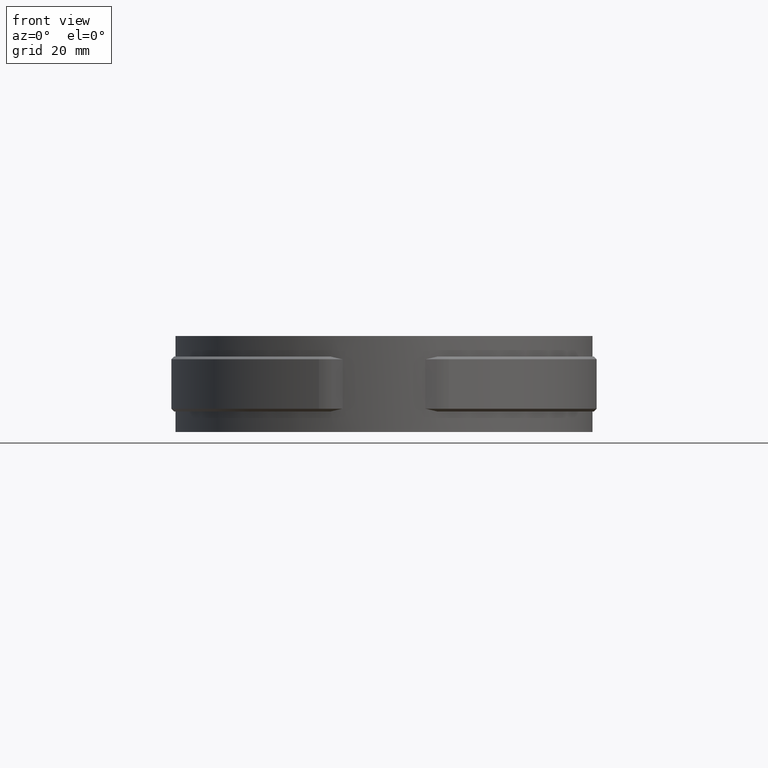
[diagram: clean part render]
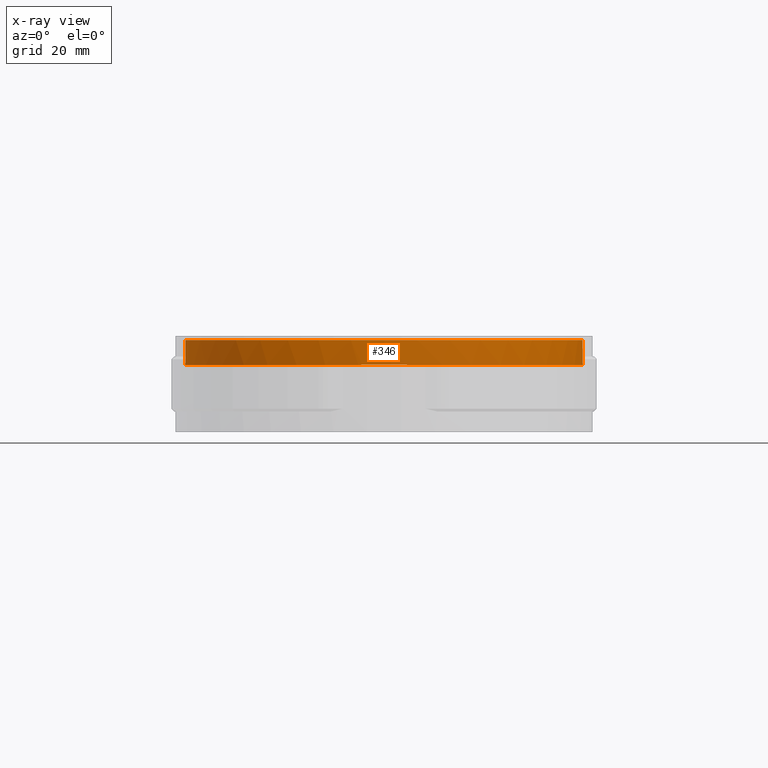
[diagram: x-ray — body ghosted, one internal face saturated and labeled with its STEP entity id]
A machine part, front view, then the same camera in x-ray: the body is ghosted and one INTERNAL B-rep face — a face not visible from any outside direction — is saturated and labeled: STEP entity #346.
In plain terms, the highlighted cylindrical surface (partial cylindrical patch) has radius 72.5 mm, axis along (0, 0, 1).
Its self-contained STEP definition (entity closure, byte-faithful):
#346 = ADVANCED_FACE( '', ( #546 ), #547, .T. );
#546 = FACE_OUTER_BOUND( '', #1259, .T. );
#547 = CYLINDRICAL_SURFACE( '', #1260, 72.5000000000000 );
#1259 = EDGE_LOOP( '', ( #2900, #2901, #2902, #2903, #2904, #2905, #2906, #2907 ) );
#1260 = AXIS2_PLACEMENT_3D( '', #2908, #2909, #2910 );
#2900 = ORIENTED_EDGE( '', *, *, #4699, .T. );
#2901 = ORIENTED_EDGE( '', *, *, #4700, .T. );
#2902 = ORIENTED_EDGE( '', *, *, #4701, .F. );
#2903 = ORIENTED_EDGE( '', *, *, #4702, .F. );
#2904 = ORIENTED_EDGE( '', *, *, #4703, .F. );
#2905 = ORIENTED_EDGE( '', *, *, #4704, .F. );
#2906 = ORIENTED_EDGE( '', *, *, #4705, .T. );
#2907 = ORIENTED_EDGE( '', *, *, #4706, .T. );
#2908 = CARTESIAN_POINT( '', ( -1.73472347597681E-015, 5.55111512312578E-014, 4.33680868994202E-016 ) );
#2909 = DIRECTION( '', ( 0.000000000000000, 0.000000000000000, 1.00000000000000 ) );
#2910 = DIRECTION( '', ( 1.00000000000000, -6.02334540269725E-017, 0.000000000000000 ) );
#4699 = EDGE_CURVE( '', #5151, #5152, #5153, .T. );
#4700 = EDGE_CURVE( '', #5152, #5154, #5155, .T. );
#4701 = EDGE_CURVE( '', #5156, #5154, #5157, .T. );
#4702 = EDGE_CURVE( '', #5158, #5156, #5159, .T. );
#4703 = EDGE_CURVE( '', #5160, #5158, #5161, .F. );
#4704 = EDGE_CURVE( '', #5162, #5160, #5163, .T. );
#4705 = EDGE_CURVE( '', #5162, #5164, #5165, .T. );
#4706 = EDGE_CURVE( '', #5164, #5151, #5166, .T. );
#5151 = VERTEX_POINT( '', #6729 );
#5152 = VERTEX_POINT( '', #6730 );
#5153 = B_SPLINE_CURVE_WITH_KNOTS( '', 3, ( #6731, #6732, #6733, #6734 ), .UNSPECIFIED., .F., .F., ( 4, 4 ), ( 0.000000000000000, 0.00132149924477472 ), .UNSPECIFIED. );
#5154 = VERTEX_POINT( '', #6735 );
#5155 = B_SPLINE_CURVE_WITH_KNOTS( '', 3, ( #6736, #6737, #6738, #6739, #6740, #6741, #6742, #6743, #6744, #6745, #6746, #6747, #6748, #6749, #6750, #6751, #6752, #6753, #6754, #6755, #6756, #6757, #6758, #6759, #6760, #6761, #6762, #6763, #6764, #6765, #6766, #6767, #6768, #6769, #6770, #6771, #6772, #6773, #6774, #6775, #6776, #6777, #6778, #6779, #6780, #6781, #6782, #6783, #6784, #6785, #6786, #6787, #6788, #6789, #6790, #6791, #6792, #6793, #6794, #6795, #6796, #6797, #6798, #6799, #6800, #6801 ), .UNSPECIFIED., .F., .F., ( 4, 2, 2, 2, 2, 2, 2, 2, 2, 2, 2, 2, 2, 2, 2, 2, 2, 2, 2, 2, 2, 2, 2, 2, 2, 2, 2, 2, 2, 2, 2, 2, 4 ), ( 0.00180017268493859, 0.0148668141487397, 0.0214001348806402, 0.0246667952465905, 0.0279334556125408, 0.0410000970763419, 0.0475334178082425, 0.0508000781741928, 0.0540667385401431, 0.0671333800039443, 0.0704000403698946, 0.0736667007358449, 0.0802000214677454, 0.0932666629315466, 0.0965333232974969, 0.0997999836634472, 0.106333304395348, 0.119399945859149, 0.122666606225099, 0.125933266591050, 0.132466587322950, 0.145533228786751, 0.148799889152702, 0.152066549518652, 0.158599870250553, 0.165133190982453, 0.168399851348403, 0.171666511714354, 0.184733153178155, 0.191266473910055, 0.194533134276006, 0.197799794641956, 0.210866436105757 ), .UNSPECIFIED. );
#5156 = VERTEX_POINT( '', #6802 );
#5157 = LINE( '', #6803, #6804 );
#5158 = VERTEX_POINT( '', #6805 );
#5159 = CIRCLE( '', #6806, 72.5000000000000 );
#5160 = VERTEX_POINT( '', #6807 );
#5161 = LINE( '', #6808, #6809 );
#5162 = VERTEX_POINT( '', #6810 );
#5163 = B_SPLINE_CURVE_WITH_KNOTS( '', 3, ( #6811, #6812, #6813, #6814, #6815, #6816, #6817, #6818, #6819, #6820, #6821, #6822, #6823, #6824, #6825, #6826, #6827, #6828, #6829, #6830, #6831, #6832, #6833, #6834, #6835, #6836, #6837, #6838, #6839, #6840, #6841, #6842, #6843, #6844, #6845, #6846, #6847, #6848, #6849, #6850, #6851, #6852, #6853, #6854, #6855, #6856, #6857, #6858, #6859, #6860, #6861, #6862, #6863, #6864, #6865, #6866, #6867, #6868, #6869, #6870, #6871, #6872, #6873, #6874, #6875 ), .UNSPECIFIED., .F., .F., ( 4, 2, 2, 2, 2, 2, 2, 2, 2, 2, 2, 2, 2, 2, 2, 2, 2, 2, 2, 2, 2, 2, 2, 2, 1, 2, 2, 2, 2, 2, 2, 2, 4 ), ( 0.00181071080096817, 0.0148766924815717, 0.0214096833218735, 0.0246761787420243, 0.0279426741621752, 0.0410086558427788, 0.0475416466830806, 0.0508081421032314, 0.0540746375233823, 0.0671406192039859, 0.0704071146241368, 0.0736736100442877, 0.0802066008845895, 0.0932725825651931, 0.0965390779853440, 0.0998055734054950, 0.106338564245797, 0.119404545926400, 0.122671041346551, 0.125937536766702, 0.132470527607004, 0.145536509287608, 0.148803004707759, 0.152069500127909, 0.158602490968211, 0.165135481808513, 0.168401977228664, 0.171668472648815, 0.184734454329419, 0.191267445169720, 0.194533940589871, 0.197800436010022, 0.210866417690626 ), .UNSPECIFIED. );
#5164 = VERTEX_POINT( '', #6876 );
#5165 = B_SPLINE_CURVE_WITH_KNOTS( '', 3, ( #6877, #6878, #6879, #6880 ), .UNSPECIFIED., .F., .F., ( 4, 4 ), ( 0.00967477096991919, 0.0110007996335536 ), .UNSPECIFIED. );
#5166 = CIRCLE( '', #6881, 72.5000000000000 );
#6729 = CARTESIAN_POINT( '', ( 7.99999999999999, -72.0572688907926, -9.00000000000001 ) );
#6730 = CARTESIAN_POINT( '', ( 9.31004542424372, -71.8997430746349, -9.12367969139905 ) );
#6731 = CARTESIAN_POINT( '', ( 7.99999999999999, -72.0572688907926, -9.00000000000001 ) );
#6732 = CARTESIAN_POINT( '', ( 8.44416107718837, -72.0079568828272, -9.00000000000001 ) );
#6733 = CARTESIAN_POINT( '', ( 8.88071544743659, -71.9553355067513, -9.04188568728999 ) );
#6734 = CARTESIAN_POINT( '', ( 9.31004542424301, -71.8997430746350, -9.12367969140327 ) );
#6735 = CARTESIAN_POINT( '', ( 8.27755905511811, 72.0259121156340, -9.12040148291710 ) );
#6736 = CARTESIAN_POINT( '', ( 9.31004542424372, -71.8997430746348, -9.12367969139904 ) );
#6737 = CARTESIAN_POINT( '', ( 13.6744206163745, -71.3346154462231, -9.12682295488739 ) );
#6738 = CARTESIAN_POINT( '', ( 17.9308008568787, -70.3827636710467, -9.12805406585490 ) );
#6739 = CARTESIAN_POINT( '', ( 24.1579999809571, -68.3914490068453, -9.12457392541070 ) );
#6740 = CARTESIAN_POINT( '', ( 26.2073419680224, -67.6331725781024, -9.12273916318543 ) );
#6741 = CARTESIAN_POINT( '', ( 29.2408706005325, -66.3507851349550, -9.12060139849485 ) );
#6742 = CARTESIAN_POINT( '', ( 30.2465955288964, -65.8984951934112, -9.12000450136236 ) );
#6743 = CARTESIAN_POINT( '', ( 32.2385646258088, -64.9472336648163, -9.11948630179163 ) );
#6744 = CARTESIAN_POINT( '', ( 33.2199284984005, -64.4506700736902, -9.11964201516923 ) );
#6745 = CARTESIAN_POINT( '', ( 38.0550521390468, -61.8652031830393, -9.12190024040564 ) );
#6746 = CARTESIAN_POINT( '', ( 41.6954672266354, -59.4708473060196, -9.12675529060290 ) );
#6747 = CARTESIAN_POINT( '', ( 46.8197896400215, -55.3978177792227, -9.12726095956356 ) );
#6748 = CARTESIAN_POINT( '', ( 48.4715087282380, -53.9594076303989, -9.12650869006169 ) );
#6749 = CARTESIAN_POINT( '', ( 50.8619895376684, -51.6770909380927, -9.12450135295612 ) );
#6750 = CARTESIAN_POINT( '', ( 51.6443913782792, -50.8951449878403, -9.12369915546608 ) );
#6751 = CARTESIAN_POINT( '', ( 53.1640157484250, -49.3056424120748, -9.12210279381312 ) );
#6752 = CARTESIAN_POINT( '', ( 53.9033382313220, -48.4961472652865, -9.12130733061777 ) );
#6753 = CARTESIAN_POINT( '', ( 57.4991213062165, -44.3761174723464, -9.11823216808537 ) );
#6754 = CARTESIAN_POINT( '', ( 60.0555379535735, -40.8496798316679, -9.12223403633779 ) );
#6755 = CARTESIAN_POINT( '', ( 62.8515739752714, -36.1541736547616, -9.12567308568724 ) );
#6756 = CARTESIAN_POINT( '', ( 63.3906543644535, -35.2005896682100, -9.12624417738881 ) );
#6757 = CARTESIAN_POINT( '', ( 64.4279560127836, -33.2640204689409, -9.12699312795867 ) );
#6758 = CARTESIAN_POINT( '', ( 64.9271881370940, -32.2788895171707, -9.12717055511854 ) );
#6759 = CARTESIAN_POINT( '', ( 66.3549464698140, -29.2939746431475, -9.12703296844565 ) );
#6760 = CARTESIAN_POINT( '', ( 67.2091805030035, -27.2752898027412, -9.12600077376335 ) );
#6761 = CARTESIAN_POINT( '', ( 69.4880929019193, -21.1356678552994, -9.12162444449441 ) );
#6762 = CARTESIAN_POINT( '', ( 70.6312375385011, -16.9318274553385, -9.11836650468904 ) );
#6763 = CARTESIAN_POINT( '', ( 71.5845569547781, -11.5369725952254, -9.12177863750550 ) );
#6764 = CARTESIAN_POINT( '', ( 71.7512585615964, -10.4509454292032, -9.12260064561349 ) );
#6765 = CARTESIAN_POINT( '', ( 72.0358461790396, -8.26451636860840, -9.12418705491811 ) );
#6766 = CARTESIAN_POINT( '', ( 72.1533956670857, -7.16554143371677, -9.12494916821181 ) );
#6767 = CARTESIAN_POINT( '', ( 72.4294232727951, -3.88054193220909, -9.12677477611673 ) );
#6768 = CARTESIAN_POINT( '', ( 72.5129417509653, -1.69567144241024, -9.12733165116732 ) );
#6769 = CARTESIAN_POINT( '', ( 72.4692658924710, 4.84392331528040, -9.12629551130253 ) );
#6770 = CARTESIAN_POINT( '', ( 72.0502366409994, 9.18375302215934, -9.12115088083175 ) );
#6771 = CARTESIAN_POINT( '', ( 71.0267065653657, 14.5830363591466, -9.11951225477560 ) );
#6772 = CARTESIAN_POINT( '', ( 70.7961375006593, 15.6643446105028, -9.11956346855534 ) );
#6773 = CARTESIAN_POINT( '', ( 70.2872623588965, 17.8091416744465, -9.12035718591093 ) );
#6774 = CARTESIAN_POINT( '', ( 70.0092925958962, 18.8719122850222, -9.12103893744088 ) );
#6775 = CARTESIAN_POINT( '', ( 69.1060603052904, 22.0318615048092, -9.12331410349489 ) );
#6776 = CARTESIAN_POINT( '', ( 68.4116152196974, 24.1007349701337, -9.12508359468743 ) );
#6777 = CARTESIAN_POINT( '', ( 66.0562372122072, 30.1960530142408, -9.12817127724507 ) );
#6778 = CARTESIAN_POINT( '', ( 64.1255468415748, 34.1121303612262, -9.12640357055617 ) );
#6779 = CARTESIAN_POINT( '', ( 61.2438886647710, 38.8156305621417, -9.12238591164717 ) );
#6780 = CARTESIAN_POINT( '', ( 60.6458117678362, 39.7434472716067, -9.12156485564366 ) );
#6781 = CARTESIAN_POINT( '', ( 59.4142071584335, 41.5620990055309, -9.12024823884880 ) );
#6782 = CARTESIAN_POINT( '', ( 58.7795894335728, 42.4547309052634, -9.11975132361662 ) );
#6783 = CARTESIAN_POINT( '', ( 56.8201147399630, 45.0832762985150, -9.11940252317470 ) );
#6784 = CARTESIAN_POINT( '', ( 55.4397480309439, 46.7699386153975, -9.12088963834242 ) );
#6785 = CARTESIAN_POINT( '', ( 52.5325115352067, 50.0132787530069, -9.12405950652633 ) );
#6786 = CARTESIAN_POINT( '', ( 51.0056425734929, 51.5699573103107, -9.12572261499226 ) );
#6787 = CARTESIAN_POINT( '', ( 48.6039564554838, 53.8061514578396, -9.12701047783404 ) );
#6788 = CARTESIAN_POINT( '', ( 47.7848025507515, 54.5350539700034, -9.12725107657160 ) );
#6789 = CARTESIAN_POINT( '', ( 46.1087057674846, 55.9593309357164, -9.12728820242303 ) );
#6790 = CARTESIAN_POINT( '', ( 45.2495177679768, 56.6563701531570, -9.12708302989062 ) );
#6791 = CARTESIAN_POINT( '', ( 40.8946674954861, 60.0273801284827, -9.12507365908864 ) );
#6792 = CARTESIAN_POINT( '', ( 37.2149361428585, 62.3721585179467, -9.11941342648302 ) );
#6793 = CARTESIAN_POINT( '', ( 31.4111028541743, 65.3784331799158, -9.11970396311075 ) );
#6794 = CARTESIAN_POINT( '', ( 29.4288227541054, 66.2948433309936, -9.12119433014745 ) );
#6795 = CARTESIAN_POINT( '', ( 26.3824266574771, 67.5382893543080, -9.12323664443853 ) );
#6796 = CARTESIAN_POINT( '', ( 25.3547800230153, 67.9308763784580, -9.12389700908568 ) );
#6797 = CARTESIAN_POINT( '', ( 23.2746405283123, 68.6713910142986, -9.12494391963428 ) );
#6798 = CARTESIAN_POINT( '', ( 22.2271883971395, 69.0174811364905, -9.12532710505633 ) );
#6799 = CARTESIAN_POINT( '', ( 16.9656827822349, 70.6242544117571, -9.12625504975852 ) );
#6800 = CARTESIAN_POINT( '', ( 12.6669242595378, 71.5214654709913, -9.12271196683189 ) );
#6801 = CARTESIAN_POINT( '', ( 8.27755905511815, 72.0259121156340, -9.12040148291713 ) );
#6802 = CARTESIAN_POINT( '', ( 8.27755905511811, 72.0259121156340, 4.33680868994202E-016 ) );
#6803 = CARTESIAN_POINT( '', ( 8.27755905511811, 72.0259121156340, 4.33680868994202E-016 ) );
#6804 = VECTOR( '', #8531, 1000.00000000000 );
#6805 = CARTESIAN_POINT( '', ( -8.27755905511811, 72.0259121156340, 4.33680868994202E-016 ) );
#6806 = AXIS2_PLACEMENT_3D( '', #8532, #8533, #8534 );
#6807 = CARTESIAN_POINT( '', ( -8.27755905511810, 72.0259121156340, -9.12062219946800 ) );
#6808 = CARTESIAN_POINT( '', ( -8.27755905511811, 72.0259121156340, 4.33680868994202E-016 ) );
#6809 = VECTOR( '', #8535, 1000.00000000000 );
#6810 = CARTESIAN_POINT( '', ( -9.32060480747493, -71.8983749887497, -9.12569982162008 ) );
#6811 = CARTESIAN_POINT( '', ( -9.32060480747493, -71.8983749887497, -9.12569982162009 ) );
#6812 = CARTESIAN_POINT( '', ( -13.6845842266141, -71.3326469377316, -9.12806441193151 ) );
#6813 = CARTESIAN_POINT( '', ( -17.9405857752718, -70.3802578518801, -9.12682824965106 ) );
#6814 = CARTESIAN_POINT( '', ( -24.1672301116159, -68.3881847766589, -9.12216962571739 ) );
#6815 = CARTESIAN_POINT( '', ( -26.2163894519340, -67.6296636679901, -9.12035947391644 ) );
#6816 = CARTESIAN_POINT( '', ( -29.2496463957305, -66.3469163312053, -9.11949472933154 ) );
#6817 = CARTESIAN_POINT( '', ( -30.2553120033406, -65.8944924091464, -9.11960426184501 ) );
#6818 = CARTESIAN_POINT( '', ( -32.2470127551814, -64.9430381384003, -9.12046528533465 ) );
#6819 = CARTESIAN_POINT( '', ( -33.2282449208971, -64.4463816230955, -9.12116590594821 ) );
#6820 = CARTESIAN_POINT( '', ( -38.0627206991181, -61.8604650023384, -9.12499409846135 ) );
#6821 = CARTESIAN_POINT( '', ( -41.7026509391507, -59.4657963571858, -9.12802284120460 ) );
#6822 = CARTESIAN_POINT( '', ( -46.8262714097283, -55.3923353344052, -9.12611796289913 ) );
#6823 = CARTESIAN_POINT( '', ( -48.4777608602551, -53.9537877698316, -9.12461858562195 ) );
#6824 = CARTESIAN_POINT( '', ( -50.8679012434243, -51.6712710437169, -9.12221803288255 ) );
#6825 = CARTESIAN_POINT( '', ( -51.6501613412146, -50.8892878492269, -9.12140745150263 ) );
#6826 = CARTESIAN_POINT( '', ( -53.1695066393164, -49.2997195540367, -9.12013934090445 ) );
#6827 = CARTESIAN_POINT( '', ( -53.9086925792886, -48.4901937621970, -9.11967993785643 ) );
#6828 = CARTESIAN_POINT( '', ( -57.5038059836491, -44.3700205617876, -9.11936431269000 ) );
#6829 = CARTESIAN_POINT( '', ( -60.0597284507358, -40.8434988863517, -9.12500984949002 ) );
#6830 = CARTESIAN_POINT( '', ( -62.8551766011633, -36.1479086305839, -9.12695161285825 ) );
#6831 = CARTESIAN_POINT( '', ( -63.3941409265217, -35.1943089089169, -9.12714711741002 ) );
#6832 = CARTESIAN_POINT( '', ( -64.4312129738244, -33.2577100551083, -9.12709704030885 ) );
#6833 = CARTESIAN_POINT( '', ( -64.9303373883605, -32.2725517218870, -9.12685017698541 ) );
#6834 = CARTESIAN_POINT( '', ( -66.3577135702712, -29.2876950571172, -9.12553687365395 ) );
#6835 = CARTESIAN_POINT( '', ( -67.2117071522710, -27.2690531887556, -9.12385781168748 ) );
#6836 = CARTESIAN_POINT( '', ( -69.4899318647231, -21.1295700375433, -9.11917449865169 ) );
#6837 = CARTESIAN_POINT( '', ( -70.6326625411557, -16.9258352956419, -9.12012787155132 ) );
#6838 = CARTESIAN_POINT( '', ( -71.5854986566028, -11.5311237295969, -9.12407977082225 ) );
#6839 = CARTESIAN_POINT( '', ( -71.7521053474789, -10.4451257679869, -9.12484687506996 ) );
#6840 = CARTESIAN_POINT( '', ( -72.0365061810133, -8.25875604056747, -9.12609425886379 ) );
#6841 = CARTESIAN_POINT( '', ( -72.1539598283572, -7.15984804453572, -9.12657215451232 ) );
#6842 = CARTESIAN_POINT( '', ( -72.4297144364871, -3.87502753294256, -9.12736998188555 ) );
#6843 = CARTESIAN_POINT( '', ( -72.5130642030198, -1.69027578354362, -9.12700808807533 ) );
#6844 = CARTESIAN_POINT( '', ( -72.4689146727120, 4.84896437417269, -9.12379022794854 ) );
#6845 = CARTESIAN_POINT( '', ( -72.0496126289708, 9.18855990232614, -9.11842202293141 ) );
#6846 = CARTESIAN_POINT( '', ( -71.0257783428575, 14.5875530969984, -9.12028433273279 ) );
#6847 = CARTESIAN_POINT( '', ( -70.7951492317491, 15.6688058550190, -9.12095863138877 ) );
#6848 = CARTESIAN_POINT( '', ( -70.2861713471292, 17.8134429302674, -9.12248426404876 ) );
#6849 = CARTESIAN_POINT( '', ( -70.0081532496588, 18.8761348169521, -9.12333325407736 ) );
#6850 = CARTESIAN_POINT( '', ( -69.1047842605112, 22.0358512549439, -9.12566916873887 ) );
#6851 = CARTESIAN_POINT( '', ( -68.4102590812467, 24.1045740300774, -9.12689144635337 ) );
#6852 = CARTESIAN_POINT( '', ( -66.0546690389322, 30.1994510727630, -9.12780946557028 ) );
#6853 = CARTESIAN_POINT( '', ( -64.1238747461504, 34.1152489550729, -9.12388742781045 ) );
#6854 = CARTESIAN_POINT( '', ( -61.2421233812863, 38.8184143672075, -9.12040723004799 ) );
#6855 = CARTESIAN_POINT( '', ( -60.6440437418737, 39.7461433244858, -9.11985615624494 ) );
#6856 = CARTESIAN_POINT( '', ( -59.4124289910998, 41.5646392010612, -9.11948846332854 ) );
#6857 = CARTESIAN_POINT( '', ( -58.7778084421775, 42.4571951032993, -9.11973157012005 ) );
#6858 = CARTESIAN_POINT( '', ( -56.8183314282047, 45.0855180621720, -9.12116188333065 ) );
#6859 = CARTESIAN_POINT( '', ( -54.0576103662646, 48.4585602332081, -9.12471968075177 ) );
#6860 = CARTESIAN_POINT( '', ( -51.0039146812821, 51.5716618526853, -9.12648274354396 ) );
#6861 = CARTESIAN_POINT( '', ( -48.6022704001961, 53.8076733999160, -9.12646996745780 ) );
#6862 = CARTESIAN_POINT( '', ( -47.7831321395204, 54.5365165535644, -9.12625614536849 ) );
#6863 = CARTESIAN_POINT( '', ( -46.1070699794848, 55.9606777368445, -9.12545963583231 ) );
#6864 = CARTESIAN_POINT( '', ( -45.2479024048014, 56.6576590839920, -9.12487475199897 ) );
#6865 = CARTESIAN_POINT( '', ( -40.8931962369977, 60.0283647963099, -9.12146958003318 ) );
#6866 = CARTESIAN_POINT( '', ( -37.2136016492889, 62.3729395151002, -9.11810755464572 ) );
#6867 = CARTESIAN_POINT( '', ( -31.4100035791843, 65.3789576853456, -9.12294294207084 ) );
#6868 = CARTESIAN_POINT( '', ( -29.4278068376636, 66.2952907436156, -9.12519976276429 ) );
#6869 = CARTESIAN_POINT( '', ( -26.3815426245734, 67.5386338051168, -9.12763000815805 ) );
#6870 = CARTESIAN_POINT( '', ( -25.3539410975081, 67.9311886245344, -9.12829305856249 ) );
#6871 = CARTESIAN_POINT( '', ( -23.2738940825405, 68.6716431385813, -9.12915602607751 ) );
#6872 = CARTESIAN_POINT( '', ( -22.2264951562901, 69.0177034913601, -9.12935309073279 ) );
#6873 = CARTESIAN_POINT( '', ( -16.9652448129097, 70.6243455396232, -9.12905910486409 ) );
#6874 = CARTESIAN_POINT( '', ( -12.6667011619264, 71.5214911104257, -9.12362346794832 ) );
#6875 = CARTESIAN_POINT( '', ( -8.27755905511814, 72.0259121156340, -9.12062219946799 ) );
#6876 = CARTESIAN_POINT( '', ( -8.00000000000001, -72.0572688907926, -9.00000000000001 ) );
#6877 = CARTESIAN_POINT( '', ( -9.32060480747493, -71.8983749887497, -9.12569982162010 ) );
#6878 = CARTESIAN_POINT( '', ( -8.88573301920297, -71.9547499496725, -9.04215767779092 ) );
#6879 = CARTESIAN_POINT( '', ( -8.44557230712629, -72.0078002041232, -9.00000000000001 ) );
#6880 = CARTESIAN_POINT( '', ( -8.00000000000000, -72.0572688907926, -9.00000000000001 ) );
#6881 = AXIS2_PLACEMENT_3D( '', #8536, #8537, #8538 );
#8531 = DIRECTION( '', ( 0.000000000000000, 0.000000000000000, -1.00000000000000 ) );
#8532 = CARTESIAN_POINT( '', ( -1.73472347597681E-015, 5.55111512312578E-014, 4.33680868994202E-016 ) );
#8533 = DIRECTION( '', ( 0.000000000000000, 0.000000000000000, 1.00000000000000 ) );
#8534 = DIRECTION( '', ( 1.00000000000000, -6.02334540269725E-017, 0.000000000000000 ) );
#8535 = DIRECTION( '', ( 0.000000000000000, 0.000000000000000, -1.00000000000000 ) );
#8536 = CARTESIAN_POINT( '', ( -1.73472347597681E-015, 5.55111512312578E-014, -9.00000000000001 ) );
#8537 = DIRECTION( '', ( 0.000000000000000, 0.000000000000000, 1.00000000000000 ) );
#8538 = DIRECTION( '', ( 1.00000000000000, 0.000000000000000, 0.000000000000000 ) );